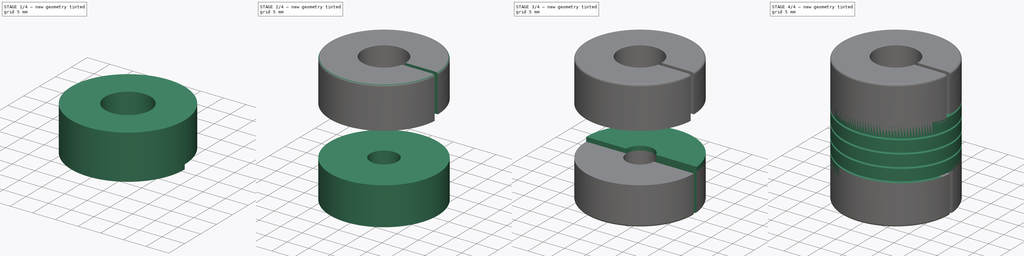
[diagram: build sequence overview — one tinted view per stage of 4, left to right]
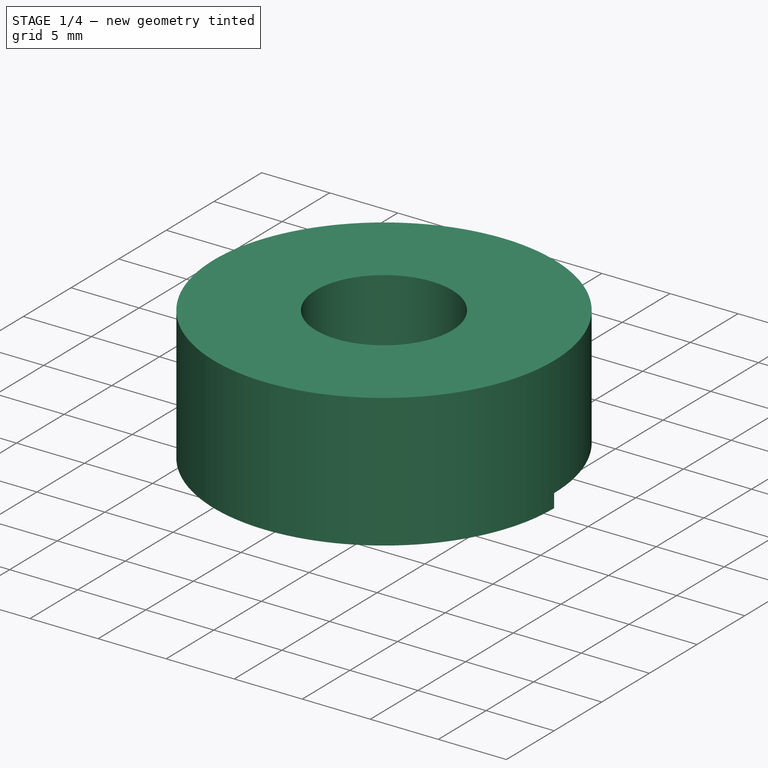
[diagram: stage 1 of 4 — iso view after this stage's code; geometry added in this stage tinted green]
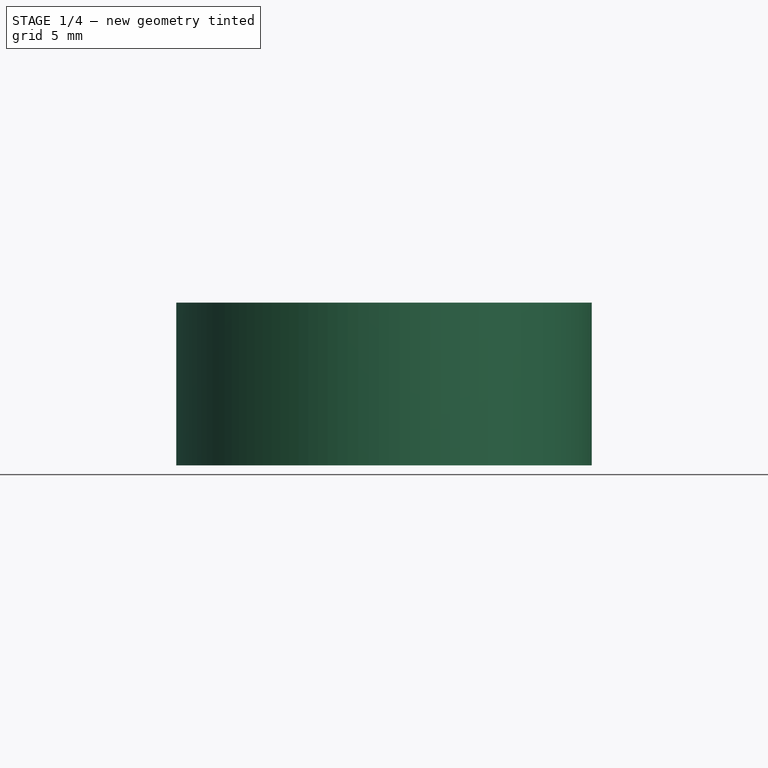
[diagram: stage 1 of 4 — front view after this stage's code; geometry added in this stage tinted green]
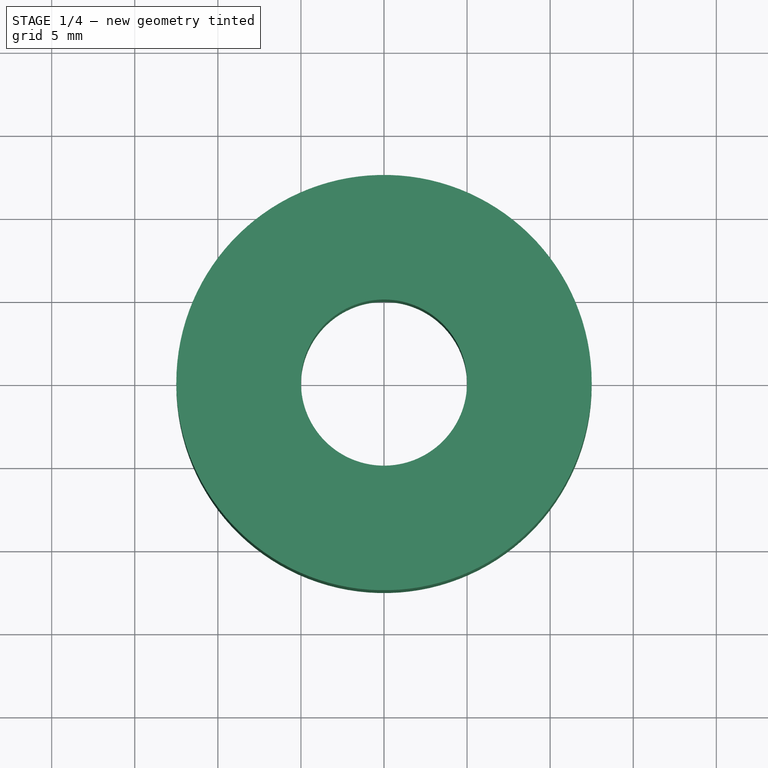
[diagram: stage 1 of 4 — top view after this stage's code; geometry added in this stage tinted green]
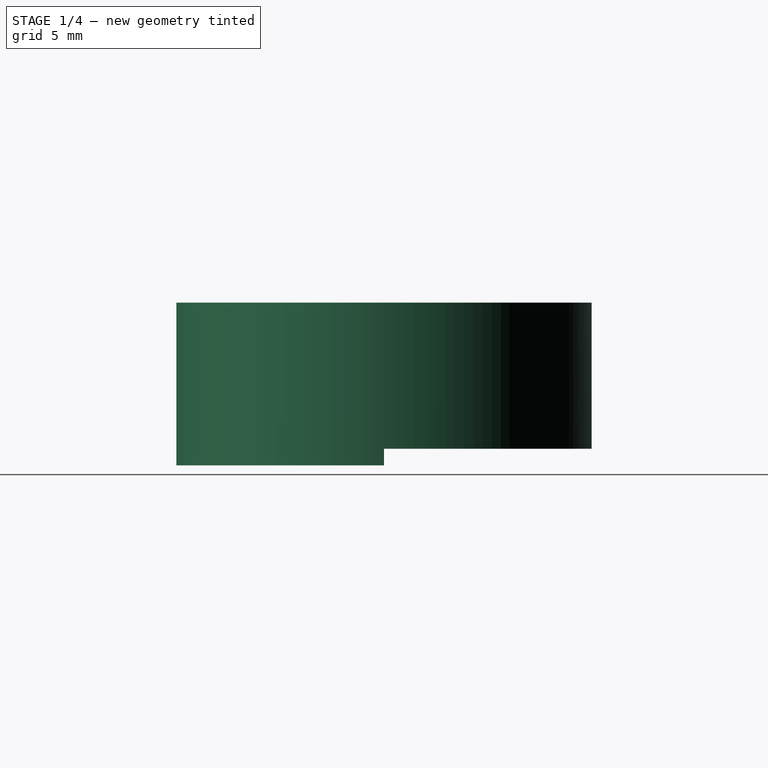
[diagram: stage 1 of 4 — right view after this stage's code; geometry added in this stage tinted green]
FCSTD DOCUMENT  (FreeCAD 0.16R5558 (Git))
Label: Coupling-6.35mm-10mm
License: CreativeCommons Attribution-ShareAlike
LicenseURL: http://creativecommons.org/licenses/by-sa/4.0/
objects: Sketcher::SketchObject×9, PartDesign::Pad×4, Part::Helix×2, Part::Sweep×2, PartDesign::Fillet×2, PartDesign::Pocket×2
note: 27 computed .brp shape members not serialized (recipe doc carries the construction recipe); baked Part::Feature solids carry a one-line shape summary decoded from their .brp

FEATURE [PartDesign::Pad] Pad003
  Length = 8.8
  Length2 = 100
  Placement = pos=(0,0,21.2) rot=(0,0,1;0rad)
  Sketch = -> Sketch002
  Type = 0
FEATURE [Sketcher::SketchObject] Sketch005
  Placement = pos=(0,0,21.2) rot=(1,0,0;3.14159rad)
  Support = -> Pad003 [Face3]
  sketch-geometry (4):
    g0: ArcOfCircle CenterX=0 CenterY=0 CenterZ=0 NormalX=0 NormalY=0 NormalZ=1 Radius=12.5 StartAngle=0 EndAngle=3.14159
    g1: ArcOfCircle CenterX=0 CenterY=0 CenterZ=0 NormalX=0 NormalY=0 NormalZ=1 Radius=5 StartAngle=0 EndAngle=3.14159
    g2: LineSegment StartX=-12.5 StartY=-1e-12 StartZ=0 EndX=-5 EndY=-1e-12 EndZ=0
    g3: LineSegment StartX=5 StartY=0 StartZ=0 EndX=12.5 EndY=0 EndZ=0
  constraints (12):
    c: PointOnObject(g0,g-1)
    c: Radius(g0) = 12.5
    c: Coincident(g0,g-1)
    c: Horizontal(g3)
    c: Coincident(g3,g0)
    c: Coincident(g1,g3)
    c: Horizontal(g2)
    c: Coincident(g2,g1)
    c: Coincident(g0,g2)
    c: Radius(g1) = 5
    c: Coincident(g1,g-1)
    c: PointOnObject(g1,g-1)
FEATURE [PartDesign::Pad] Pad004
  Length = 1
  Length2 = 100
  Placement = pos=(0,0,21.2) rot=(0,0,1;0rad)
  Sketch = -> Sketch005
  Type = 0
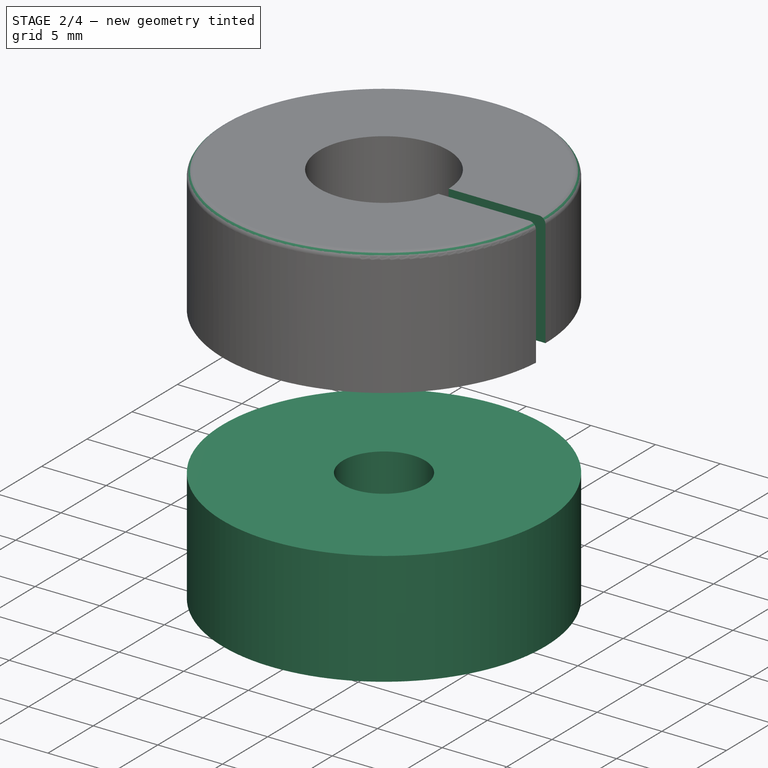
[diagram: stage 2 of 4 — iso view after this stage's code; geometry added in this stage tinted green]
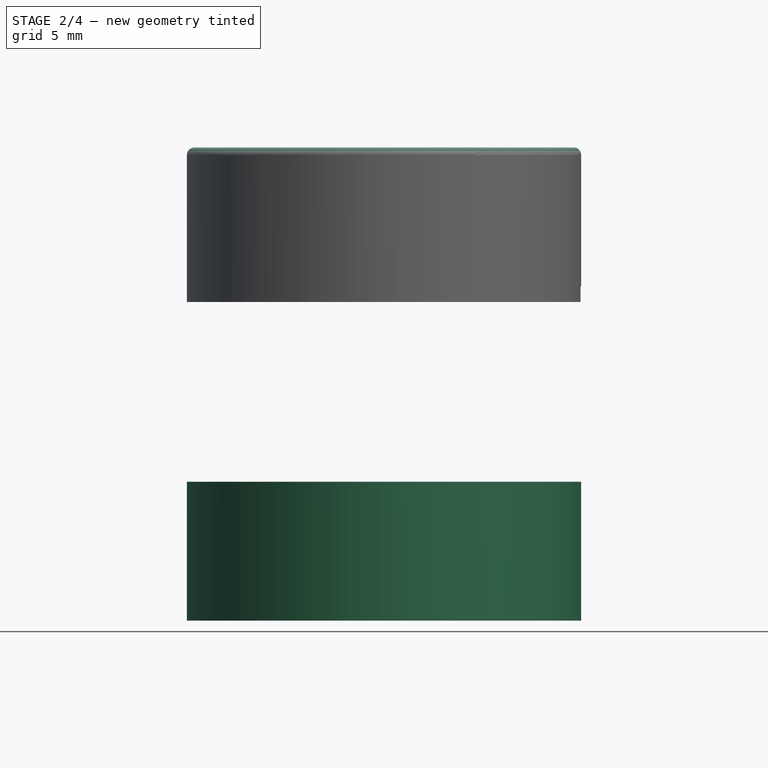
[diagram: stage 2 of 4 — front view after this stage's code; geometry added in this stage tinted green]
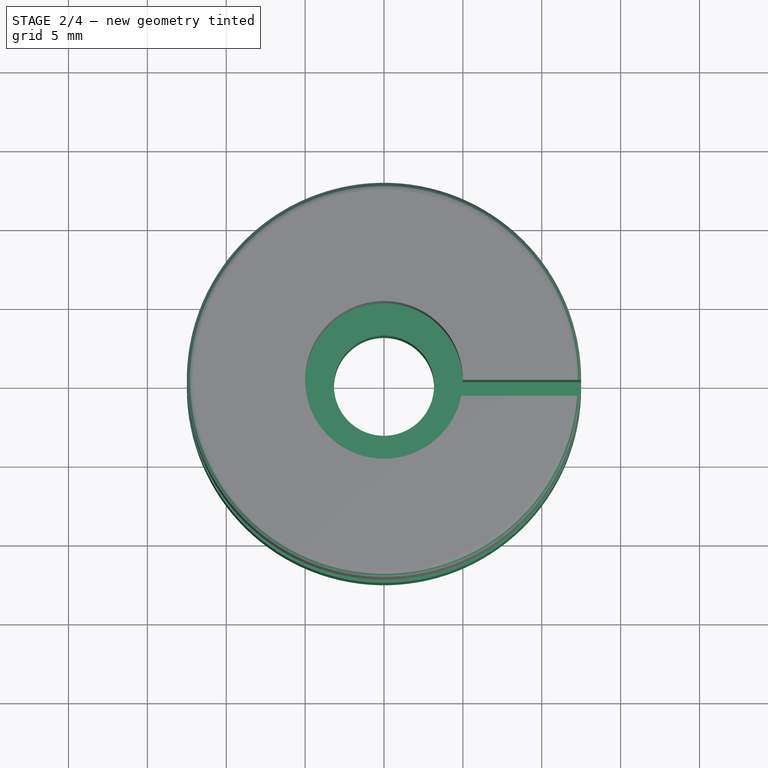
[diagram: stage 2 of 4 — top view after this stage's code; geometry added in this stage tinted green]
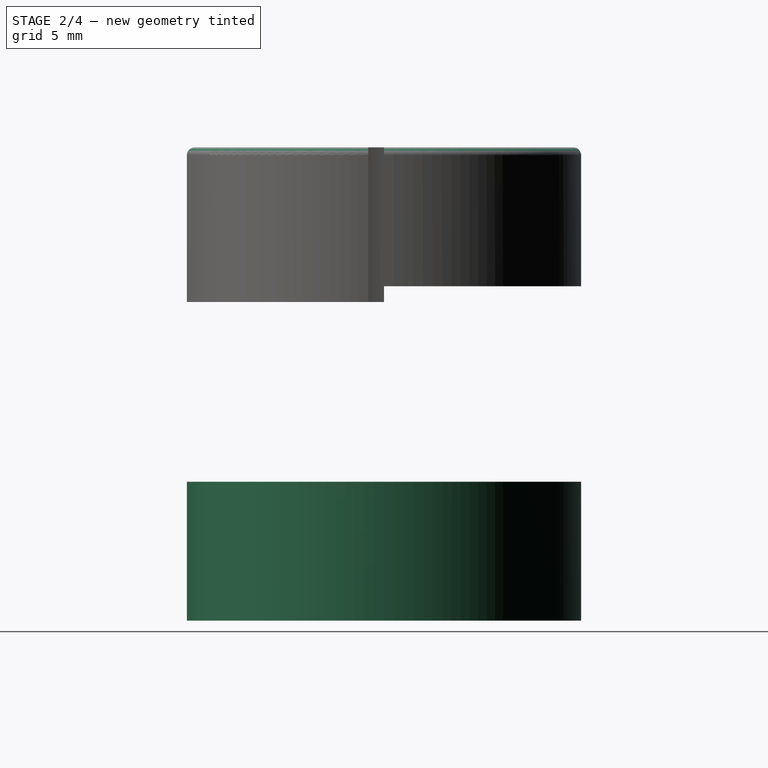
[diagram: stage 2 of 4 — right view after this stage's code; geometry added in this stage tinted green]
FEATURE [Sketcher::SketchObject] Sketch
  Placement = pos=(0,0,7.5) rot=(1,0,0;1.5708rad)
  sketch-geometry (4):
    g0: LineSegment StartX=3.175 StartY=1.3 StartZ=0 EndX=12.5 EndY=1.3 EndZ=0
    g1: LineSegment StartX=12.5 StartY=1.3 StartZ=0 EndX=12.5 EndY=-1.3 EndZ=0
    g2: LineSegment StartX=12.5 StartY=-1.3 StartZ=0 EndX=3.175 EndY=-1.3 EndZ=0
    g3: LineSegment StartX=3.175 StartY=-1.3 StartZ=0 EndX=3.175 EndY=1.3 EndZ=0
  constraints (12):
    c: Coincident(g0,g1)
    c: Coincident(g1,g2)
    c: Coincident(g2,g3)
    c: Coincident(g3,g0)
    c: Horizontal(g0)
    c: Horizontal(g2)
    c: Vertical(g1)
    c: Vertical(g3)
    c: DistanceX(g-1,g2) = 3.175
    c: DistanceX(g-1,g1) = 12.5
    c: DistanceY(g1,g0) = 2.6
    c: Symmetric(g2,g0,g-1)
FEATURE [Sketcher::SketchObject] Sketch001
  sketch-geometry (2):
    g0: Circle CenterX=0 CenterY=0 CenterZ=0 NormalX=0 NormalY=0 NormalZ=1 Radius=3.175
    g1: Circle CenterX=0 CenterY=0 CenterZ=0 NormalX=0 NormalY=0 NormalZ=1 Radius=12.5
  constraints (4):
    c: Radius(g0) = 3.175
    c: Radius(g1) = 12.5
    c: Coincident(g-1,g0)
    c: Coincident(g-1,g1)
FEATURE [PartDesign::Pad] Pad
  Length = 8.8
  Length2 = 100
  Sketch = -> Sketch001
  Type = 0
FEATURE [PartDesign::Fillet] Fillet001
  Base = -> Pad004 [Edge1]
  Placement = pos=(0,0,21.2) rot=(0,0,1;0rad)
  Radius = 0.5
FEATURE [PartDesign::Pocket] Pocket001
  Length = 9.8
  Placement = pos=(0,0,21.2) rot=(0,0,1;0rad)
  Sketch = -> Sketch008
  Type = 0
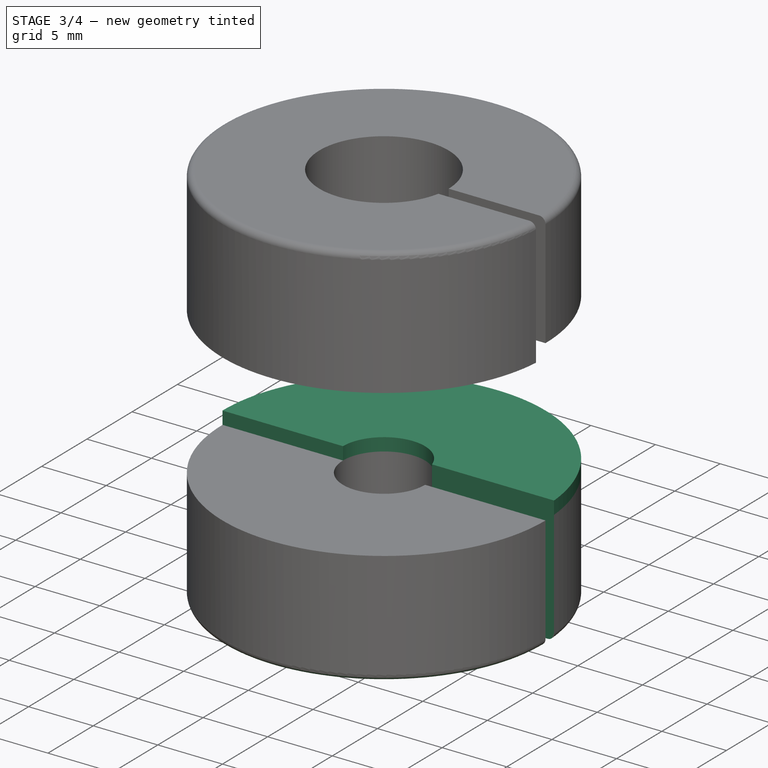
[diagram: stage 3 of 4 — iso view after this stage's code; geometry added in this stage tinted green]
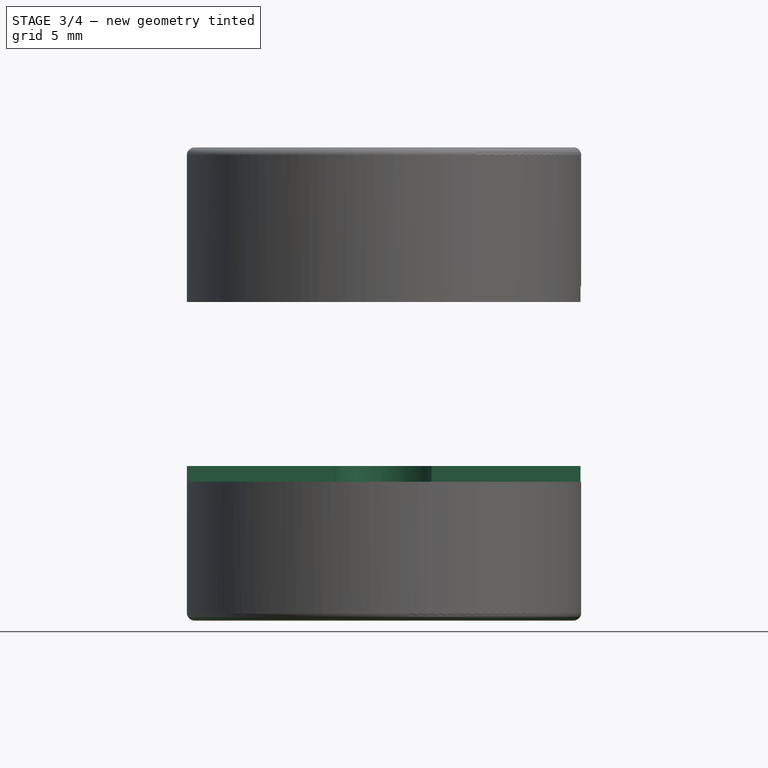
[diagram: stage 3 of 4 — front view after this stage's code; geometry added in this stage tinted green]
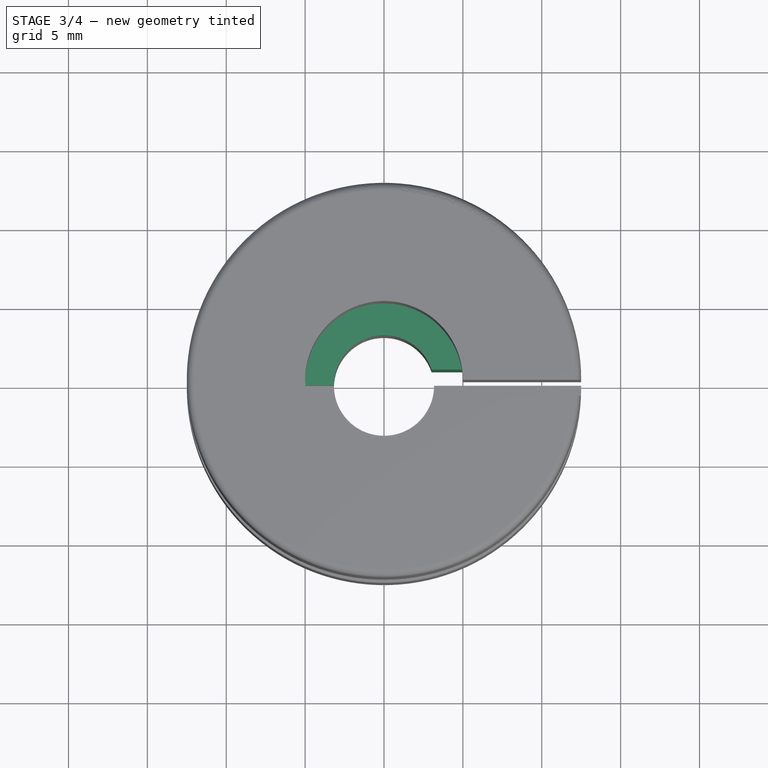
[diagram: stage 3 of 4 — top view after this stage's code; geometry added in this stage tinted green]
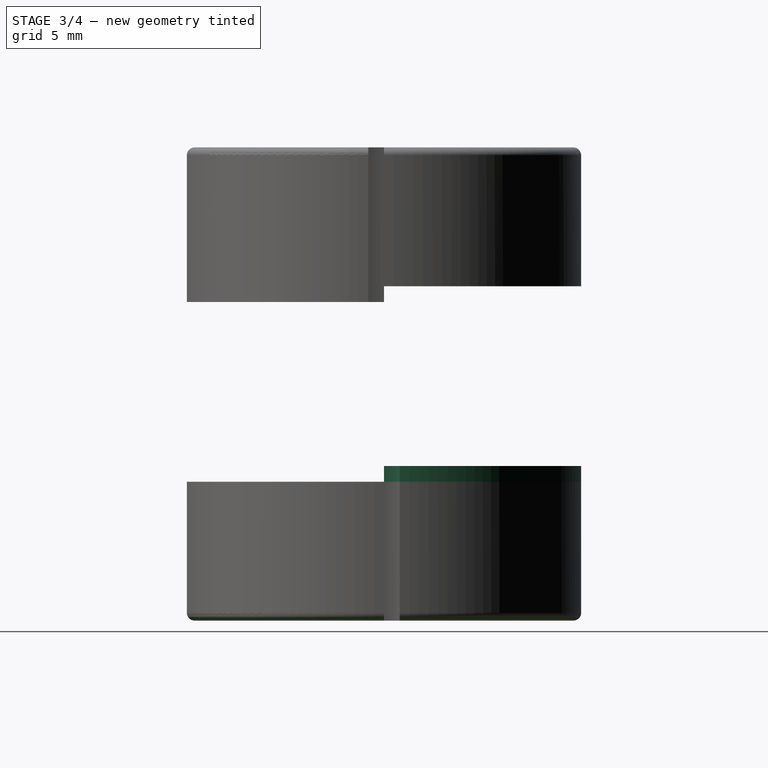
[diagram: stage 3 of 4 — right view after this stage's code; geometry added in this stage tinted green]
FEATURE [Sketcher::SketchObject] Sketch002
  Placement = pos=(0,0,21.2) rot=(0,0,1;0rad)
  sketch-geometry (2):
    g0: Circle CenterX=0 CenterY=0 CenterZ=0 NormalX=0 NormalY=0 NormalZ=1 Radius=12.5
    g1: Circle CenterX=0 CenterY=0 CenterZ=0 NormalX=0 NormalY=0 NormalZ=1 Radius=5
  constraints (4):
    c: Radius(g0) = 12.5
    c: Coincident(g-1,g0)
    c: Radius(g1) = 5
    c: Coincident(g-1,g1)
FEATURE [Sketcher::SketchObject] Sketch003
  Placement = pos=(0,0,8.8) rot=(0,0,1;0rad)
  Support = -> Pad [Face4]
  sketch-geometry (4):
    g0: LineSegment StartX=-12.5 StartY=0 StartZ=0 EndX=-3.175 EndY=0 EndZ=0
    g1: LineSegment StartX=3.175 StartY=0 StartZ=0 EndX=12.5 EndY=0 EndZ=0
    g2: ArcOfCircle CenterX=0 CenterY=0 CenterZ=0 NormalX=0 NormalY=0 NormalZ=1 Radius=3.175 StartAngle=0 EndAngle=3.14159
    g3: ArcOfCircle CenterX=0 CenterY=0 CenterZ=0 NormalX=0 NormalY=0 NormalZ=1 Radius=12.5 StartAngle=0 EndAngle=3.14159
  constraints (12):
    c: PointOnObject(g1,g-1)
    c: Horizontal(g1)
    c: Horizontal(g0)
    c: PointOnObject(g0,g-1)
    c: Coincident(g1,g2)
    c: Coincident(g0,g2)
    c: Radius(g2) = 3.175
    c: Coincident(g2,g-1)
    c: Coincident(g1,g3)
    c: Coincident(g0,g3)
    c: Radius(g3) = 12.5
    c: Coincident(g-1,g3)
FEATURE [PartDesign::Pad] Pad002
  Length = 1
  Length2 = 100
  Sketch = -> Sketch003
  Type = 0
FEATURE [PartDesign::Fillet] Fillet
  Base = -> Pad002 [Edge1]
  Radius = 0.5
FEATURE [Sketcher::SketchObject] Sketch007
  Placement = pos=(0,0,0) rot=(1,0,0;3.14159rad)
  Support = -> Fillet [Face1]
  sketch-geometry (4):
    g0: LineSegment StartX=2.8 StartY=0 StartZ=0 EndX=12.6 EndY=0 EndZ=0
    g1: LineSegment StartX=12.6 StartY=0 StartZ=0 EndX=12.6 EndY=-1 EndZ=0
    g2: LineSegment StartX=12.6 StartY=-1 StartZ=0 EndX=2.8 EndY=-1 EndZ=0
    g3: LineSegment StartX=2.8 StartY=-1 StartZ=0 EndX=2.8 EndY=0 EndZ=0
  constraints (12):
    c: Coincident(g0,g1)
    c: Coincident(g1,g2)
    c: Coincident(g2,g3)
    c: Coincident(g3,g0)
    c: Horizontal(g0)
    c: Horizontal(g2)
    c: Vertical(g1)
    c: Vertical(g3)
    c: DistanceX(g-1,g2) = 2.8
    c: DistanceX(g-1,g1) = 12.6
    c: DistanceY(g1,g0) = 1
    c: PointOnObject(g0,g-1)
FEATURE [Sketcher::SketchObject] Sketch008
  Placement = pos=(0,0,30) rot=(0,0,1;0rad)
  Support = -> Fillet001 [Face1]
  sketch-geometry (4):
    g0: LineSegment StartX=4.8 StartY=0 StartZ=0 EndX=12.6 EndY=0 EndZ=0
    g1: LineSegment StartX=12.6 StartY=0 StartZ=0 EndX=12.6 EndY=-1 EndZ=0
    g2: LineSegment StartX=12.6 StartY=-1 StartZ=0 EndX=4.8 EndY=-1 EndZ=0
    g3: LineSegment StartX=4.8 StartY=-1 StartZ=0 EndX=4.8 EndY=0 EndZ=0
  constraints (12):
    c: Coincident(g0,g1)
    c: Coincident(g1,g2)
    c: Coincident(g2,g3)
    c: Coincident(g3,g0)
    c: Horizontal(g0)
    c: Horizontal(g2)
    c: Vertical(g1)
    c: Vertical(g3)
    c: DistanceX(g-1,g2) = 4.8
    c: DistanceX(g-1,g1) = 12.6
    c: DistanceY(g1,g0) = 1
    c: PointOnObject(g0,g-1)
FEATURE [PartDesign::Pocket] Pocket
  Length = 9.8
  Sketch = -> Sketch007
  Type = 0
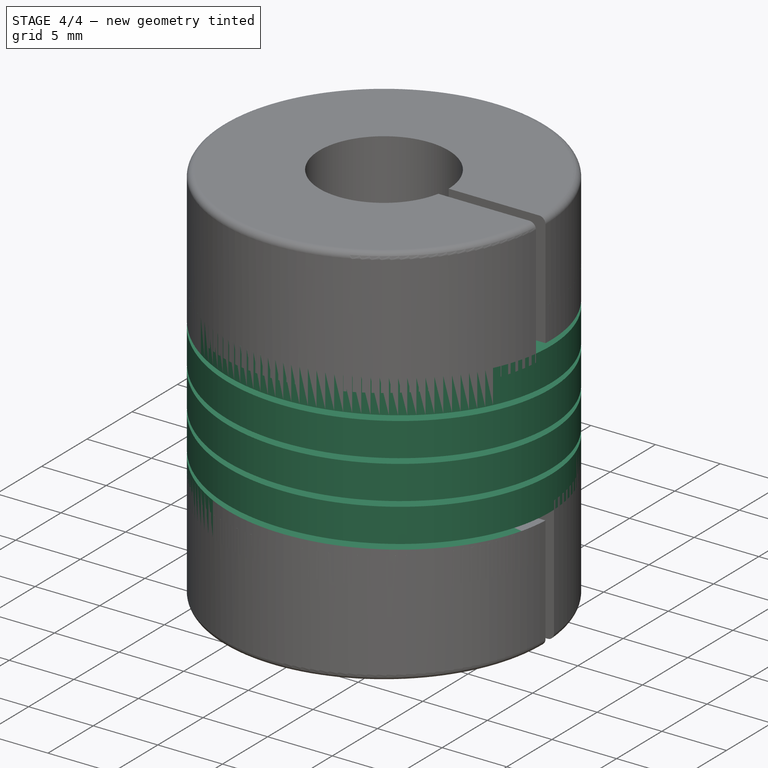
[diagram: stage 4 of 4 — iso view after this stage's code; geometry added in this stage tinted green]
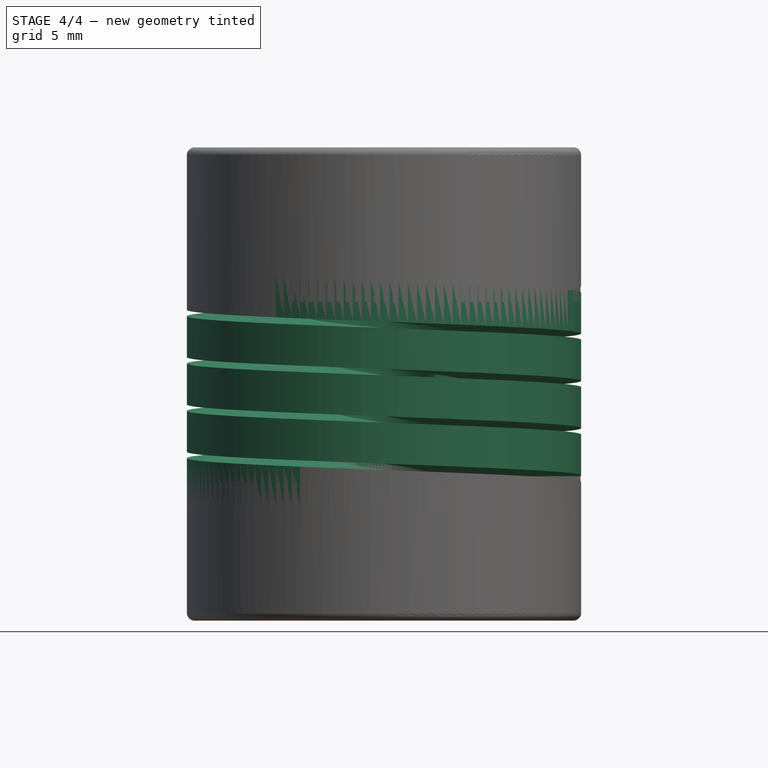
[diagram: stage 4 of 4 — front view after this stage's code; geometry added in this stage tinted green]
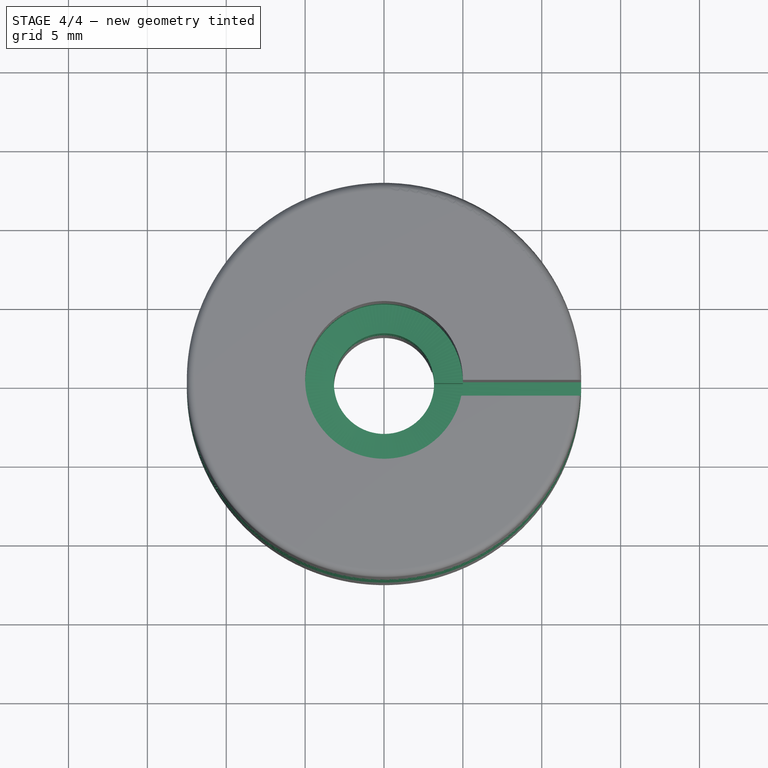
[diagram: stage 4 of 4 — top view after this stage's code; geometry added in this stage tinted green]
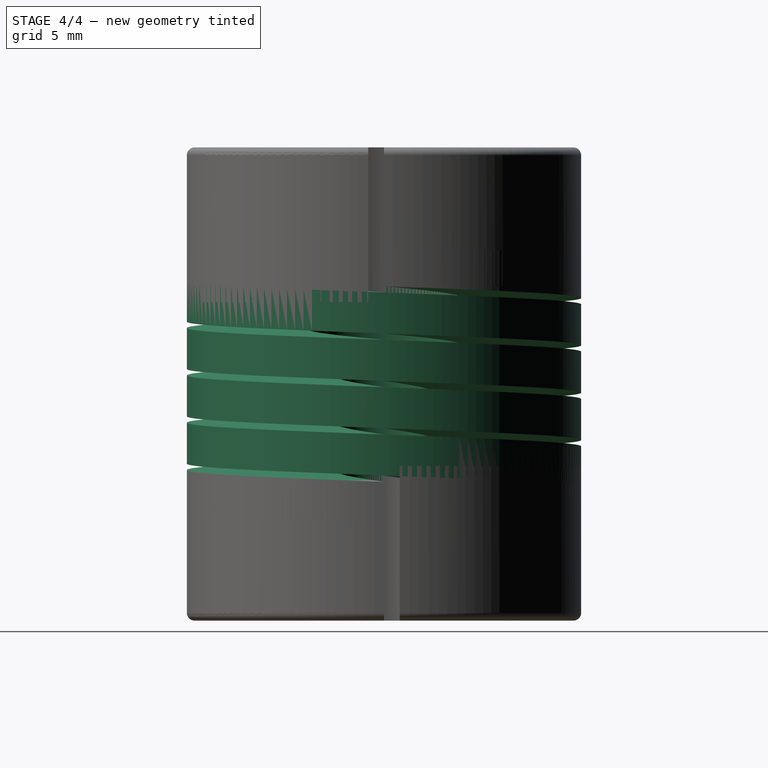
[diagram: stage 4 of 4 — right view after this stage's code; geometry added in this stage tinted green]
FEATURE [Sketcher::SketchObject] Sketch004
  Placement = pos=(0,0,21.2) rot=(1,0,0;3.14159rad)
  sketch-geometry (2):
    g0: Circle CenterX=0 CenterY=0 CenterZ=0 NormalX=0 NormalY=0 NormalZ=1 Radius=12.5
    g1: Circle CenterX=0 CenterY=0 CenterZ=0 NormalX=0 NormalY=0 NormalZ=1 Radius=5
  constraints (4):
    c: Coincident(g0,g-1)
    c: Radius(g1) = 5
    c: Radius(g0) = 12.5
    c: Coincident(g-1,g1)
FEATURE [Part::Helix] Helix001
  Angle = 0
  Height = 6
  LocalCoord = 1
  Pitch = 3
  Radius = 5
  Style = 1
FEATURE [Sketcher::SketchObject] Sketch006
  Placement = pos=(0,0,0) rot=(1,0,0;1.5708rad)
  sketch-geometry (4):
    g0: LineSegment StartX=5 StartY=1.3 StartZ=0 EndX=12.5 EndY=1.3 EndZ=0
    g1: LineSegment StartX=12.5 StartY=1.3 StartZ=0 EndX=12.5 EndY=-1.3 EndZ=0
    g2: LineSegment StartX=12.5 StartY=-1.3 StartZ=0 EndX=5 EndY=-1.3 EndZ=0
    g3: LineSegment StartX=5 StartY=-1.3 StartZ=0 EndX=5 EndY=1.3 EndZ=0
  constraints (12):
    c: Coincident(g0,g1)
    c: Coincident(g1,g2)
    c: Coincident(g2,g3)
    c: Coincident(g3,g0)
    c: Horizontal(g0)
    c: Horizontal(g2)
    c: Vertical(g1)
    c: Vertical(g3)
    c: Symmetric(g2,g0,g-1)
    c: DistanceY(g0,g1) = -2.6
    c: DistanceX(g-1,g2) = 5
    c: DistanceX(g-1,g1) = 12.5
FEATURE [Part::Sweep] Sweep001
  Frenet = true
  Placement = pos=(0,0,16.5) rot=(0,0,1;0rad)
  Sections = -> [Sketch006]
  Solid = true
  Spine = -> Helix001 [Edge1,Edge2]
  Transition = 1
FEATURE [Part::Helix] Helix002
  Angle = 0
  Height = 9
  LocalCoord = 1
  Pitch = 3
  Radius = 3.17
  Style = 1
FEATURE [Part::Sweep] Sweep
  Frenet = true
  Placement = pos=(0,0,6) rot=(0,0,1;0rad)
  Sections = -> [Sketch]
  Solid = true
  Spine = -> Helix002 [Edge3,Edge2,Edge1]
  Transition = 1
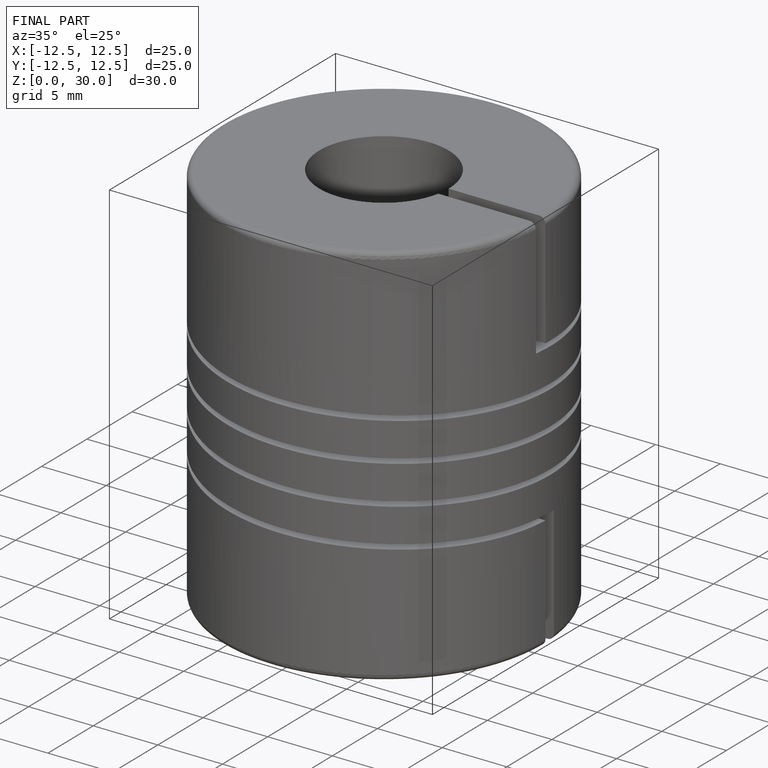
[diagram: finished part — iso view with bounding-box wireframe]
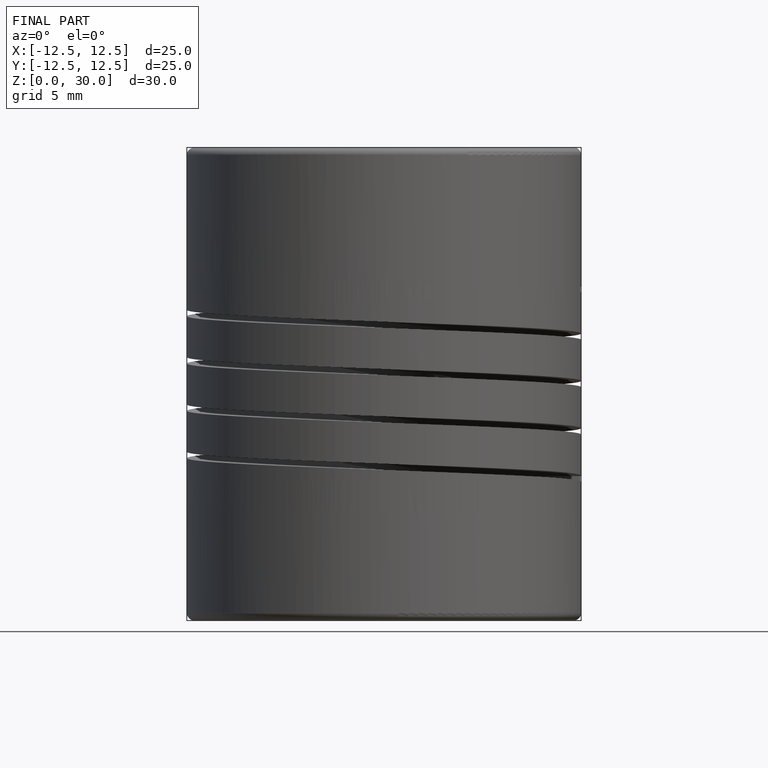
[diagram: finished part — front view with bounding-box wireframe]
